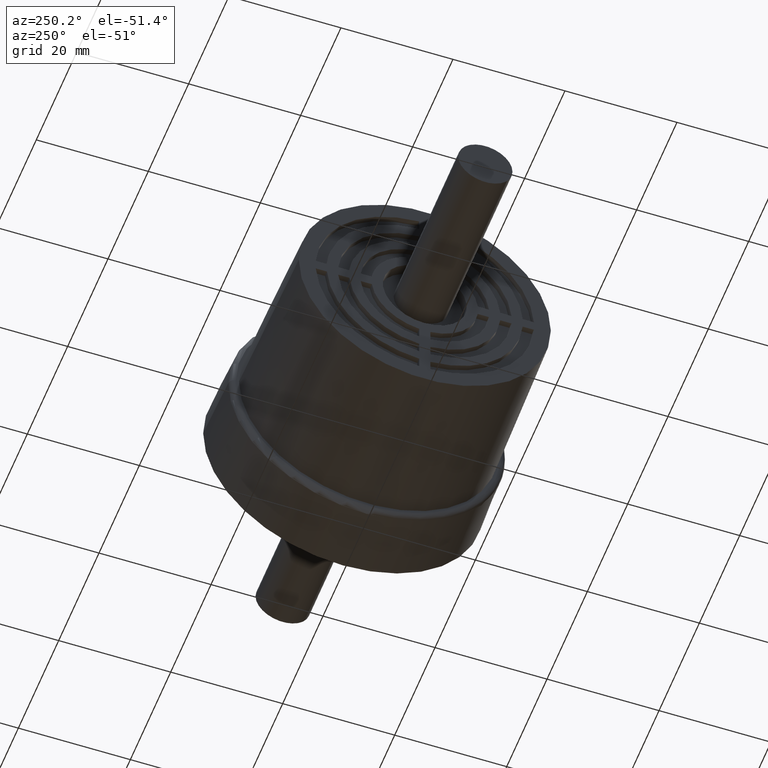
[diagram: clean part render]
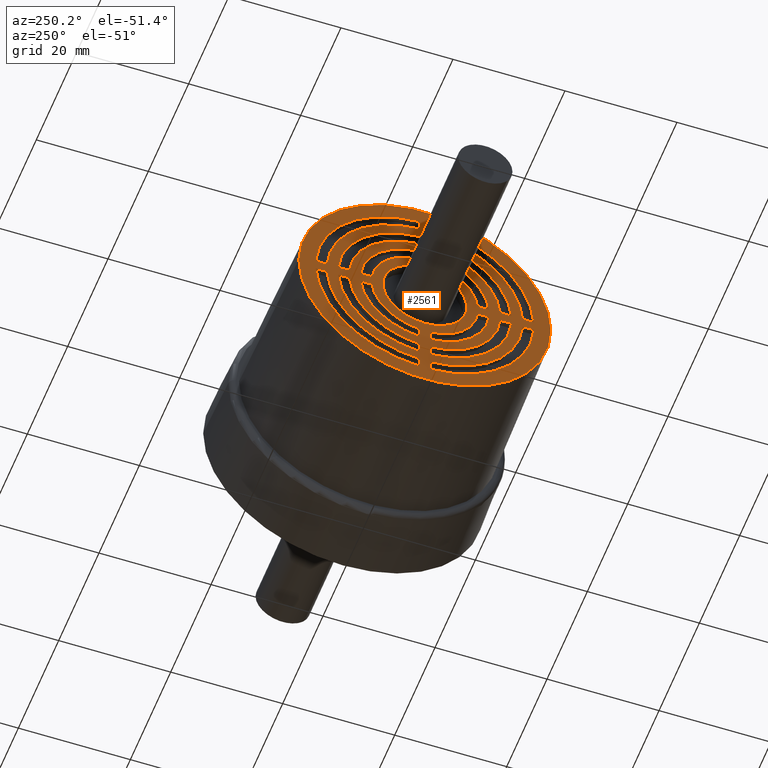
[diagram: same view with one face highlighted and labeled with its STEP entity id]
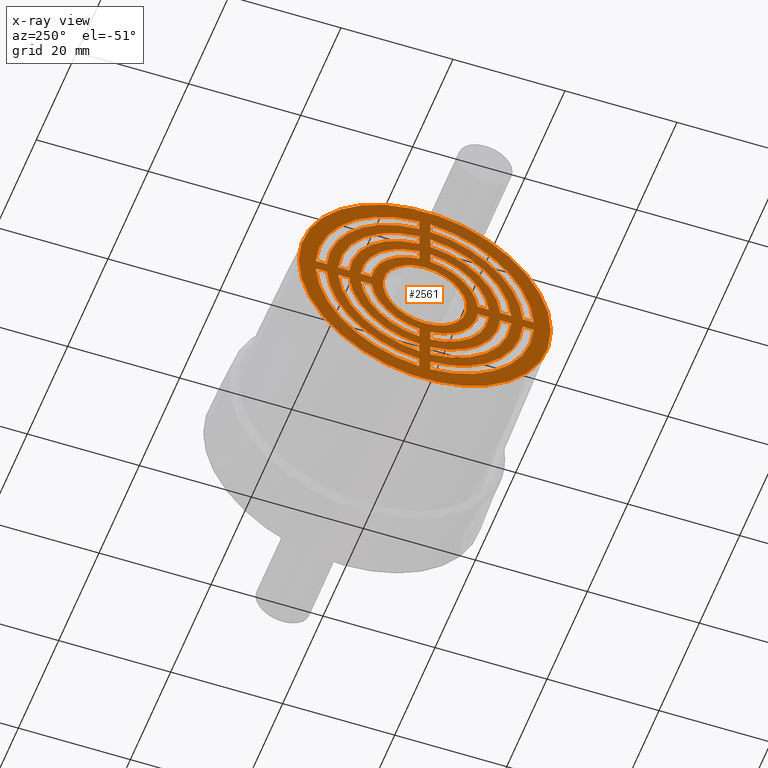
[diagram: x-ray of the same camera — body ghosted, the highlighted face saturated]
A machine part, auxiliary view. The second image highlights one B-rep face of the part: STEP entity #2561.
The next image is the same camera in x-ray: the body ghosted, the highlighted face saturated — about 10% of this face is hidden behind the body in this view.
In plain terms, the highlighted planar face has unit normal (-1, -0, 0).
Its self-contained STEP definition (entity closure, byte-faithful):
#143=LINE('',#4064,#367);
#148=LINE('',#4078,#372);
#151=LINE('',#4089,#375);
#156=LINE('',#4103,#380);
#159=LINE('',#4114,#383);
#164=LINE('',#4128,#388);
#167=LINE('',#4139,#391);
#172=LINE('',#4153,#396);
#175=LINE('',#4164,#399);
#180=LINE('',#4178,#404);
#183=LINE('',#4189,#407);
#188=LINE('',#4203,#412);
#193=LINE('',#4222,#417);
#197=LINE('',#4233,#421);
#199=LINE('',#4239,#423);
#204=LINE('',#4253,#428);
#207=LINE('',#4264,#431);
#212=LINE('',#4278,#436);
#215=LINE('',#4289,#439);
#220=LINE('',#4303,#444);
#223=LINE('',#4314,#447);
#228=LINE('',#4328,#452);
#231=LINE('',#4339,#455);
#236=LINE('',#4353,#460);
#367=VECTOR('',#3303,2.00241678883345);
#372=VECTOR('',#3316,2.00241678883345);
#375=VECTOR('',#3329,2.00241678883345);
#380=VECTOR('',#3342,2.00241678883345);
#383=VECTOR('',#3355,2.00479628042176);
#388=VECTOR('',#3368,2.00479628042176);
#391=VECTOR('',#3381,2.00479628042176);
#396=VECTOR('',#3394,2.00479628042176);
#399=VECTOR('',#3407,2.00921742354401);
#404=VECTOR('',#3420,2.00921742354401);
#407=VECTOR('',#3433,2.00921742354401);
#412=VECTOR('',#3446,2.00921742354401);
#417=VECTOR('',#3467,2.00921742354401);
#421=VECTOR('',#3479,2.00921742354401);
#423=VECTOR('',#3485,2.00921742354401);
#428=VECTOR('',#3498,2.00921742354401);
#431=VECTOR('',#3511,2.00479628042176);
#436=VECTOR('',#3524,2.00479628042176);
#439=VECTOR('',#3537,2.00479628042176);
#444=VECTOR('',#3550,2.00479628042176);
#447=VECTOR('',#3563,2.00241678883345);
#452=VECTOR('',#3576,2.00241678883345);
#455=VECTOR('',#3589,2.00241678883345);
#460=VECTOR('',#3602,2.00241678883345);
#612=PLANE('',#2839);
#623=FACE_BOUND('',#965,.T.);
#624=FACE_BOUND('',#966,.T.);
#625=FACE_BOUND('',#967,.T.);
#626=FACE_BOUND('',#968,.T.);
#627=FACE_BOUND('',#969,.T.);
#628=FACE_BOUND('',#970,.T.);
#629=FACE_BOUND('',#971,.T.);
#630=FACE_BOUND('',#972,.T.);
#631=FACE_BOUND('',#973,.T.);
#632=FACE_BOUND('',#974,.T.);
#633=FACE_BOUND('',#975,.T.);
#634=FACE_BOUND('',#976,.T.);
#635=FACE_BOUND('',#977,.T.);
#803=FACE_OUTER_BOUND('',#964,.T.);
#964=EDGE_LOOP('',(#2289));
#965=EDGE_LOOP('',(#2290));
#966=EDGE_LOOP('',(#2291,#2292,#2293,#2294));
#967=EDGE_LOOP('',(#2295,#2296,#2297,#2298));
#968=EDGE_LOOP('',(#2299,#2300,#2301,#2302));
#969=EDGE_LOOP('',(#2303,#2304,#2305,#2306));
#970=EDGE_LOOP('',(#2307,#2308,#2309,#2310));
#971=EDGE_LOOP('',(#2311,#2312,#2313,#2314));
#972=EDGE_LOOP('',(#2315,#2316,#2317,#2318));
#973=EDGE_LOOP('',(#2319,#2320,#2321,#2322));
#974=EDGE_LOOP('',(#2323,#2324,#2325,#2326));
#975=EDGE_LOOP('',(#2327,#2328,#2329,#2330));
#976=EDGE_LOOP('',(#2331,#2332,#2333,#2334));
#977=EDGE_LOOP('',(#2335,#2336,#2337,#2338));
#1076=CIRCLE('',#2728,7.5);
#1078=CIRCLE('',#2733,17.5);
#1080=CIRCLE('',#2737,19.4994805886941);
#1082=CIRCLE('',#2742,19.4994805886941);
#1084=CIRCLE('',#2746,17.5);
#1086=CIRCLE('',#2751,13.5);
#1088=CIRCLE('',#2755,15.5);
#1090=CIRCLE('',#2760,15.5);
#1092=CIRCLE('',#2764,13.5);
#1094=CIRCLE('',#2769,9.5);
#1096=CIRCLE('',#2773,11.5);
#1098=CIRCLE('',#2778,11.5);
#1100=CIRCLE('',#2782,9.5);
#1102=CIRCLE('',#2786,11.5);
#1104=CIRCLE('',#2790,9.5);
#1106=CIRCLE('',#2796,11.5);
#1108=CIRCLE('',#2800,9.5);
#1110=CIRCLE('',#2805,15.5);
#1112=CIRCLE('',#2809,13.5);
#1114=CIRCLE('',#2814,15.5);
#1116=CIRCLE('',#2818,13.5);
#1118=CIRCLE('',#2823,19.4994805886941);
#1120=CIRCLE('',#2827,17.5);
#1122=CIRCLE('',#2832,17.5);
#1124=CIRCLE('',#2836,19.4994805886941);
#1126=CIRCLE('',#2840,22.5);
#1265=VERTEX_POINT('',#4056);
#1267=VERTEX_POINT('',#4062);
#1268=VERTEX_POINT('',#4063);
#1271=VERTEX_POINT('',#4071);
#1273=VERTEX_POINT('',#4077);
#1275=VERTEX_POINT('',#4087);
#1276=VERTEX_POINT('',#4088);
#1279=VERTEX_POINT('',#4096);
#1281=VERTEX_POINT('',#4102);
#1283=VERTEX_POINT('',#4112);
#1284=VERTEX_POINT('',#4113);
#1287=VERTEX_POINT('',#4121);
#1289=VERTEX_POINT('',#4127);
#1291=VERTEX_POINT('',#4137);
#1292=VERTEX_POINT('',#4138);
#1295=VERTEX_POINT('',#4146);
#1297=VERTEX_POINT('',#4152);
#1299=VERTEX_POINT('',#4162);
#1300=VERTEX_POINT('',#4163);
#1303=VERTEX_POINT('',#4171);
#1305=VERTEX_POINT('',#4177);
#1307=VERTEX_POINT('',#4187);
#1308=VERTEX_POINT('',#4188);
#1311=VERTEX_POINT('',#4196);
#1313=VERTEX_POINT('',#4202);
#1315=VERTEX_POINT('',#4212);
#1316=VERTEX_POINT('',#4213);
#1319=VERTEX_POINT('',#4221);
#1321=VERTEX_POINT('',#4227);
#1323=VERTEX_POINT('',#4237);
#1324=VERTEX_POINT('',#4238);
#1327=VERTEX_POINT('',#4246);
#1329=VERTEX_POINT('',#4252);
#1331=VERTEX_POINT('',#4262);
#1332=VERTEX_POINT('',#4263);
#1335=VERTEX_POINT('',#4271);
#1337=VERTEX_POINT('',#4277);
#1339=VERTEX_POINT('',#4287);
#1340=VERTEX_POINT('',#4288);
#1343=VERTEX_POINT('',#4296);
#1345=VERTEX_POINT('',#4302);
#1347=VERTEX_POINT('',#4312);
#1348=VERTEX_POINT('',#4313);
#1351=VERTEX_POINT('',#4321);
#1353=VERTEX_POINT('',#4327);
#1355=VERTEX_POINT('',#4337);
#1356=VERTEX_POINT('',#4338);
#1359=VERTEX_POINT('',#4346);
#1361=VERTEX_POINT('',#4352);
#1363=VERTEX_POINT('',#4362);
#1566=EDGE_CURVE('',#1265,#1265,#1076,.T.);
#1568=EDGE_CURVE('',#1267,#1268,#143,.T.);
#1572=EDGE_CURVE('',#1271,#1267,#1078,.T.);
#1575=EDGE_CURVE('',#1273,#1271,#148,.T.);
#1578=EDGE_CURVE('',#1268,#1273,#1080,.T.);
#1580=EDGE_CURVE('',#1275,#1276,#151,.T.);
#1584=EDGE_CURVE('',#1279,#1275,#1082,.T.);
#1587=EDGE_CURVE('',#1281,#1279,#156,.T.);
#1590=EDGE_CURVE('',#1276,#1281,#1084,.T.);
#1592=EDGE_CURVE('',#1283,#1284,#159,.T.);
#1596=EDGE_CURVE('',#1287,#1283,#1086,.T.);
#1599=EDGE_CURVE('',#1289,#1287,#164,.T.);
#1602=EDGE_CURVE('',#1284,#1289,#1088,.T.);
#1604=EDGE_CURVE('',#1291,#1292,#167,.T.);
#1608=EDGE_CURVE('',#1295,#1291,#1090,.T.);
#1611=EDGE_CURVE('',#1297,#1295,#172,.T.);
#1614=EDGE_CURVE('',#1292,#1297,#1092,.T.);
#1616=EDGE_CURVE('',#1299,#1300,#175,.T.);
#1620=EDGE_CURVE('',#1303,#1299,#1094,.T.);
#1623=EDGE_CURVE('',#1305,#1303,#180,.T.);
#1626=EDGE_CURVE('',#1300,#1305,#1096,.T.);
#1628=EDGE_CURVE('',#1307,#1308,#183,.T.);
#1632=EDGE_CURVE('',#1311,#1307,#1098,.T.);
#1635=EDGE_CURVE('',#1313,#1311,#188,.T.);
#1638=EDGE_CURVE('',#1308,#1313,#1100,.T.);
#1640=EDGE_CURVE('',#1315,#1316,#1102,.T.);
#1644=EDGE_CURVE('',#1319,#1315,#193,.T.);
#1647=EDGE_CURVE('',#1321,#1319,#1104,.T.);
#1650=EDGE_CURVE('',#1316,#1321,#197,.T.);
#1652=EDGE_CURVE('',#1323,#1324,#199,.T.);
#1656=EDGE_CURVE('',#1327,#1323,#1106,.T.);
#1659=EDGE_CURVE('',#1329,#1327,#204,.T.);
#1662=EDGE_CURVE('',#1324,#1329,#1108,.T.);
#1664=EDGE_CURVE('',#1331,#1332,#207,.T.);
#1668=EDGE_CURVE('',#1335,#1331,#1110,.T.);
#1671=EDGE_CURVE('',#1337,#1335,#212,.T.);
#1674=EDGE_CURVE('',#1332,#1337,#1112,.T.);
#1676=EDGE_CURVE('',#1339,#1340,#215,.T.);
#1680=EDGE_CURVE('',#1343,#1339,#1114,.T.);
#1683=EDGE_CURVE('',#1345,#1343,#220,.T.);
#1686=EDGE_CURVE('',#1340,#1345,#1116,.T.);
#1688=EDGE_CURVE('',#1347,#1348,#223,.T.);
#1692=EDGE_CURVE('',#1351,#1347,#1118,.T.);
#1695=EDGE_CURVE('',#1353,#1351,#228,.T.);
#1698=EDGE_CURVE('',#1348,#1353,#1120,.T.);
#1700=EDGE_CURVE('',#1355,#1356,#231,.T.);
#1704=EDGE_CURVE('',#1359,#1355,#1122,.T.);
#1707=EDGE_CURVE('',#1361,#1359,#236,.T.);
#1710=EDGE_CURVE('',#1356,#1361,#1124,.T.);
#1712=EDGE_CURVE('',#1363,#1363,#1126,.T.);
#2289=ORIENTED_EDGE('',*,*,#1712,.F.);
#2290=ORIENTED_EDGE('',*,*,#1566,.T.);
#2291=ORIENTED_EDGE('',*,*,#1568,.T.);
#2292=ORIENTED_EDGE('',*,*,#1578,.T.);
#2293=ORIENTED_EDGE('',*,*,#1575,.T.);
#2294=ORIENTED_EDGE('',*,*,#1572,.T.);
#2295=ORIENTED_EDGE('',*,*,#1580,.T.);
#2296=ORIENTED_EDGE('',*,*,#1590,.T.);
#2297=ORIENTED_EDGE('',*,*,#1587,.T.);
#2298=ORIENTED_EDGE('',*,*,#1584,.T.);
#2299=ORIENTED_EDGE('',*,*,#1592,.T.);
#2300=ORIENTED_EDGE('',*,*,#1602,.T.);
#2301=ORIENTED_EDGE('',*,*,#1599,.T.);
#2302=ORIENTED_EDGE('',*,*,#1596,.T.);
#2303=ORIENTED_EDGE('',*,*,#1604,.T.);
#2304=ORIENTED_EDGE('',*,*,#1614,.T.);
#2305=ORIENTED_EDGE('',*,*,#1611,.T.);
#2306=ORIENTED_EDGE('',*,*,#1608,.T.);
#2307=ORIENTED_EDGE('',*,*,#1616,.T.);
#2308=ORIENTED_EDGE('',*,*,#1626,.T.);
#2309=ORIENTED_EDGE('',*,*,#1623,.T.);
#2310=ORIENTED_EDGE('',*,*,#1620,.T.);
#2311=ORIENTED_EDGE('',*,*,#1628,.T.);
#2312=ORIENTED_EDGE('',*,*,#1638,.T.);
#2313=ORIENTED_EDGE('',*,*,#1635,.T.);
#2314=ORIENTED_EDGE('',*,*,#1632,.T.);
#2315=ORIENTED_EDGE('',*,*,#1640,.T.);
#2316=ORIENTED_EDGE('',*,*,#1650,.T.);
#2317=ORIENTED_EDGE('',*,*,#1647,.T.);
#2318=ORIENTED_EDGE('',*,*,#1644,.T.);
#2319=ORIENTED_EDGE('',*,*,#1652,.T.);
#2320=ORIENTED_EDGE('',*,*,#1662,.T.);
#2321=ORIENTED_EDGE('',*,*,#1659,.T.);
#2322=ORIENTED_EDGE('',*,*,#1656,.T.);
#2323=ORIENTED_EDGE('',*,*,#1664,.T.);
#2324=ORIENTED_EDGE('',*,*,#1674,.T.);
#2325=ORIENTED_EDGE('',*,*,#1671,.T.);
#2326=ORIENTED_EDGE('',*,*,#1668,.T.);
#2327=ORIENTED_EDGE('',*,*,#1676,.T.);
#2328=ORIENTED_EDGE('',*,*,#1686,.T.);
#2329=ORIENTED_EDGE('',*,*,#1683,.T.);
#2330=ORIENTED_EDGE('',*,*,#1680,.T.);
#2331=ORIENTED_EDGE('',*,*,#1688,.T.);
#2332=ORIENTED_EDGE('',*,*,#1698,.T.);
#2333=ORIENTED_EDGE('',*,*,#1695,.T.);
#2334=ORIENTED_EDGE('',*,*,#1692,.T.);
#2335=ORIENTED_EDGE('',*,*,#1700,.T.);
#2336=ORIENTED_EDGE('',*,*,#1710,.T.);
#2337=ORIENTED_EDGE('',*,*,#1707,.T.);
#2338=ORIENTED_EDGE('',*,*,#1704,.T.);
#2561=ADVANCED_FACE('',(#803,#623,#624,#625,#626,#627,#628,#629,#630,#631,
#632,#633,#634,#635),#612,.T.);
#2728=AXIS2_PLACEMENT_3D('',#4057,#3295,#3296);
#2733=AXIS2_PLACEMENT_3D('',#4072,#3309,#3310);
#2737=AXIS2_PLACEMENT_3D('',#4083,#3321,#3322);
#2742=AXIS2_PLACEMENT_3D('',#4097,#3335,#3336);
#2746=AXIS2_PLACEMENT_3D('',#4108,#3347,#3348);
#2751=AXIS2_PLACEMENT_3D('',#4122,#3361,#3362);
#2755=AXIS2_PLACEMENT_3D('',#4133,#3373,#3374);
#2760=AXIS2_PLACEMENT_3D('',#4147,#3387,#3388);
#2764=AXIS2_PLACEMENT_3D('',#4158,#3399,#3400);
#2769=AXIS2_PLACEMENT_3D('',#4172,#3413,#3414);
#2773=AXIS2_PLACEMENT_3D('',#4183,#3425,#3426);
#2778=AXIS2_PLACEMENT_3D('',#4197,#3439,#3440);
#2782=AXIS2_PLACEMENT_3D('',#4208,#3451,#3452);
#2786=AXIS2_PLACEMENT_3D('',#4214,#3459,#3460);
#2790=AXIS2_PLACEMENT_3D('',#4228,#3472,#3473);
#2796=AXIS2_PLACEMENT_3D('',#4247,#3491,#3492);
#2800=AXIS2_PLACEMENT_3D('',#4258,#3503,#3504);
#2805=AXIS2_PLACEMENT_3D('',#4272,#3517,#3518);
#2809=AXIS2_PLACEMENT_3D('',#4283,#3529,#3530);
#2814=AXIS2_PLACEMENT_3D('',#4297,#3543,#3544);
#2818=AXIS2_PLACEMENT_3D('',#4308,#3555,#3556);
#2823=AXIS2_PLACEMENT_3D('',#4322,#3569,#3570);
#2827=AXIS2_PLACEMENT_3D('',#4333,#3581,#3582);
#2832=AXIS2_PLACEMENT_3D('',#4347,#3595,#3596);
#2836=AXIS2_PLACEMENT_3D('',#4358,#3607,#3608);
#2839=AXIS2_PLACEMENT_3D('',#4361,#3613,#3614);
#2840=AXIS2_PLACEMENT_3D('',#4363,#3615,#3616);
#3295=DIRECTION('center_axis',(1.,1.83697019872103E-16,0.));
#3296=DIRECTION('ref_axis',(0.,0.,-1.));
#3303=DIRECTION('',(-2.11722716332591E-32,1.15256478564541E-16,-1.));
#3309=DIRECTION('center_axis',(-1.,-1.83697019872103E-16,0.));
#3310=DIRECTION('ref_axis',(0.,-0.998366011980351,0.0571428571428572));
#3316=DIRECTION('',(1.83697019872103E-16,-1.,-6.91538871387244E-17));
#3321=DIRECTION('center_axis',(1.,1.83697019872103E-16,0.));
#3322=DIRECTION('ref_axis',(0.,0.998684139811428,-0.051283417291628));
#3329=DIRECTION('',(-1.83697019872103E-16,1.,1.84410365703265E-16));
#3335=DIRECTION('center_axis',(1.,1.83697019872103E-16,0.));
#3336=DIRECTION('ref_axis',(1.38595265793328E-16,-0.998684139811428,0.0512834172916279));
#3342=DIRECTION('',(0.,0.,1.));
#3347=DIRECTION('center_axis',(-1.,-1.83697019872103E-16,0.));
#3348=DIRECTION('ref_axis',(-1.38551116687973E-16,0.998366011980351,-0.0571428571428565));
#3355=DIRECTION('',(-2.11722716332591E-32,1.15256478564541E-16,-1.));
#3361=DIRECTION('center_axis',(-1.,-1.83697019872103E-16,0.));
#3362=DIRECTION('ref_axis',(0.,-0.997252742061945,0.0740740740740739));
#3368=DIRECTION('',(1.83697019872103E-16,-1.,-6.91538871387244E-17));
#3373=DIRECTION('center_axis',(1.,1.83697019872103E-16,0.));
#3374=DIRECTION('ref_axis',(0.,0.997916664403743,-0.0645161290322579));
#3381=DIRECTION('',(-1.83697019872103E-16,1.,1.84410365703265E-16));
#3387=DIRECTION('center_axis',(1.,1.83697019872103E-16,0.));
#3388=DIRECTION('ref_axis',(1.38488757184772E-16,-0.997916664403743,0.0645161290322571));
#3394=DIRECTION('',(0.,0.,1.));
#3399=DIRECTION('center_axis',(-1.,-1.83697019872103E-16,0.));
#3400=DIRECTION('ref_axis',(-1.38396619450969E-16,0.997252742061945,-0.0740740740740738));
#3407=DIRECTION('',(-2.11722716332591E-32,1.15256478564541E-16,-1.));
#3413=DIRECTION('center_axis',(-1.,-1.83697019872103E-16,0.));
#3414=DIRECTION('ref_axis',(0.,-0.994444401457431,0.105263157894737));
#3420=DIRECTION('',(1.83697019872103E-16,-1.,-6.91538871387244E-17));
#3425=DIRECTION('center_axis',(1.,1.83697019872103E-16,0.));
#3426=DIRECTION('ref_axis',(0.,0.996212107599096,-0.0869565217391303));
#3433=DIRECTION('',(-1.83697019872103E-16,1.,1.84410365703265E-16));
#3439=DIRECTION('center_axis',(1.,1.83697019872103E-16,0.));
#3440=DIRECTION('ref_axis',(1.38252202408359E-16,-0.996212107599096,0.0869565217391304));
#3446=DIRECTION('',(0.,0.,1.));
#3451=DIRECTION('center_axis',(-1.,-1.83697019872103E-16,0.));
#3452=DIRECTION('ref_axis',(-1.38006883900953E-16,0.994444401457431,-0.105263157894736));
#3459=DIRECTION('center_axis',(1.,1.83697019872103E-16,0.));
#3460=DIRECTION('ref_axis',(-1.20676415720126E-17,0.0869565217391304,0.996212107599096));
#3467=DIRECTION('',(-1.83697019872103E-16,1.,6.91538871387244E-17));
#3472=DIRECTION('center_axis',(-1.,-1.83697019872103E-16,0.));
#3473=DIRECTION('ref_axis',(1.46081976924363E-17,-0.105263157894737,-0.994444401457431));
#3479=DIRECTION('',(2.11722716332591E-33,-1.15256478564541E-17,-1.));
#3485=DIRECTION('',(2.11722716332591E-32,-1.15256478564541E-16,1.));
#3491=DIRECTION('center_axis',(1.,1.83697019872103E-16,0.));
#3492=DIRECTION('ref_axis',(0.,-0.08695652173913,-0.996212107599096));
#3498=DIRECTION('',(1.83697019872103E-16,-1.,-1.84410365703265E-16));
#3503=DIRECTION('center_axis',(-1.,-1.83697019872103E-16,0.));
#3504=DIRECTION('ref_axis',(0.,0.105263157894736,0.994444401457431));
#3511=DIRECTION('',(2.11722716332591E-33,-1.15256478564541E-17,-1.));
#3517=DIRECTION('center_axis',(1.,1.83697019872103E-16,0.));
#3518=DIRECTION('ref_axis',(0.,0.0645161290322581,0.997916664403743));
#3524=DIRECTION('',(-1.83697019872103E-16,1.,6.91538871387244E-17));
#3529=DIRECTION('center_axis',(-1.,-1.83697019872103E-16,0.));
#3530=DIRECTION('ref_axis',(0.,-0.0740740740740741,-0.997252742061945));
#3537=DIRECTION('',(2.11722716332591E-32,-1.15256478564541E-16,1.));
#3543=DIRECTION('center_axis',(1.,1.83697019872103E-16,0.));
#3544=DIRECTION('ref_axis',(0.,-0.0645161290322576,-0.997916664403743));
#3550=DIRECTION('',(1.83697019872103E-16,-1.,-1.84410365703265E-16));
#3555=DIRECTION('center_axis',(-1.,-1.83697019872103E-16,0.));
#3556=DIRECTION('ref_axis',(0.,0.0740740740740738,0.997252742061945));
#3563=DIRECTION('',(2.11722716332591E-33,-1.15256478564541E-17,-1.));
#3569=DIRECTION('center_axis',(1.,1.83697019872103E-16,0.));
#3570=DIRECTION('ref_axis',(0.,0.0512834172916281,0.998684139811428));
#3576=DIRECTION('',(-1.83697019872103E-16,1.,6.91538871387244E-17));
#3581=DIRECTION('center_axis',(-1.,-1.83697019872103E-16,0.));
#3582=DIRECTION('ref_axis',(0.,-0.0571428571428572,-0.998366011980351));
#3589=DIRECTION('',(1.83697019872103E-16,-1.,-1.84410365703265E-16));
#3595=DIRECTION('center_axis',(-1.,-1.83697019872103E-16,0.));
#3596=DIRECTION('ref_axis',(-7.93016446160826E-18,0.057142857142857,0.998366011980351));
#3602=DIRECTION('',(2.11722716332591E-32,-1.15256478564541E-16,1.));
#3607=DIRECTION('center_axis',(1.,1.83697019872103E-16,0.));
#3608=DIRECTION('ref_axis',(7.11700383232818E-18,-0.0512834172916279,-0.998684139811428));
#3613=DIRECTION('center_axis',(-1.,-1.83697019872103E-16,0.));
#3614=DIRECTION('ref_axis',(0.,0.,1.));
#3615=DIRECTION('center_axis',(1.,1.83697019872103E-16,0.));
#3616=DIRECTION('ref_axis',(0.,0.,-1.));
#4056=CARTESIAN_POINT('',(-70.5,-1.20321548016227E-14,7.5));
#4057=CARTESIAN_POINT('Origin',(-70.5,-1.29506399009833E-14,0.));
#4062=CARTESIAN_POINT('',(-70.5,0.999999999999988,-17.4714052096561));
#4063=CARTESIAN_POINT('',(-70.5,0.99999999999999,-19.4738219984896));
#4064=CARTESIAN_POINT('',(-70.5,0.999999999999988,-8.73570260482808));
#4071=CARTESIAN_POINT('',(-70.5,17.4714052096561,-1.));
#4072=CARTESIAN_POINT('Origin',(-70.5,-1.29506399009833E-14,0.));
#4077=CARTESIAN_POINT('',(-70.5,19.4738219984896,-0.999999999999999));
#4078=CARTESIAN_POINT('',(-70.5,20.9869109992448,-0.999999999999999));
#4083=CARTESIAN_POINT('Origin',(-70.5,-1.29506399009833E-14,0.));
#4087=CARTESIAN_POINT('',(-70.5,-19.4738219984896,0.999999999999996));
#4088=CARTESIAN_POINT('',(-70.5,-17.4714052096562,0.999999999999988));
#4089=CARTESIAN_POINT('',(-70.5,1.51308900075519,1.));
#4096=CARTESIAN_POINT('',(-70.5,-1.00000000000001,19.4738219984896));
#4097=CARTESIAN_POINT('Origin',(-70.5,-1.29506399009833E-14,0.));
#4102=CARTESIAN_POINT('',(-70.5,-1.00000000000002,17.4714052096561));
#4103=CARTESIAN_POINT('',(-70.5,-1.00000000000001,8.73570260482807));
#4108=CARTESIAN_POINT('Origin',(-70.5,-1.29506399009833E-14,0.));
#4112=CARTESIAN_POINT('',(-70.5,0.999999999999988,-13.4629120178363));
#4113=CARTESIAN_POINT('',(-70.5,0.999999999999991,-15.467708298258));
#4114=CARTESIAN_POINT('',(-70.5,0.999999999999988,-6.73145600891813));
#4121=CARTESIAN_POINT('',(-70.5,13.4629120178362,-0.999999999999998));
#4122=CARTESIAN_POINT('Origin',(-70.5,-1.29506399009833E-14,0.));
#4127=CARTESIAN_POINT('',(-70.5,15.467708298258,-0.999999999999998));
#4128=CARTESIAN_POINT('',(-70.5,18.983854149129,-0.999999999999999));
#4133=CARTESIAN_POINT('Origin',(-70.5,-1.29506399009833E-14,0.));
#4137=CARTESIAN_POINT('',(-70.5,-15.467708298258,0.999999999999985));
#4138=CARTESIAN_POINT('',(-70.5,-13.4629120178363,0.999999999999996));
#4139=CARTESIAN_POINT('',(-70.5,3.51614585087098,1.));
#4146=CARTESIAN_POINT('',(-70.5,-1.00000000000001,15.467708298258));
#4147=CARTESIAN_POINT('Origin',(-70.5,-1.29506399009833E-14,0.));
#4152=CARTESIAN_POINT('',(-70.5,-1.00000000000001,13.4629120178363));
#4153=CARTESIAN_POINT('',(-70.5,-1.00000000000001,6.73145600891813));
#4158=CARTESIAN_POINT('Origin',(-70.5,-1.29506399009833E-14,0.));
#4162=CARTESIAN_POINT('',(-70.5,0.999999999999989,-9.44722181384559));
#4163=CARTESIAN_POINT('',(-70.5,0.99999999999999,-11.4564392373896));
#4164=CARTESIAN_POINT('',(-70.5,0.999999999999988,-4.7236109069228));
#4171=CARTESIAN_POINT('',(-70.5,9.44722181384558,-0.999999999999998));
#4172=CARTESIAN_POINT('Origin',(-70.5,-1.29506399009833E-14,0.));
#4177=CARTESIAN_POINT('',(-70.5,11.4564392373896,-0.999999999999999));
#4178=CARTESIAN_POINT('',(-70.5,16.9782196186948,-0.999999999999999));
#4183=CARTESIAN_POINT('Origin',(-70.5,-1.29506399009833E-14,0.));
#4187=CARTESIAN_POINT('',(-70.5,-11.4564392373896,1.));
#4188=CARTESIAN_POINT('',(-70.5,-9.44722181384561,0.999999999999995));
#4189=CARTESIAN_POINT('',(-70.5,5.52178038130519,1.));
#4196=CARTESIAN_POINT('',(-70.5,-1.00000000000001,11.4564392373896));
#4197=CARTESIAN_POINT('Origin',(-70.5,-1.29506399009833E-14,0.));
#4202=CARTESIAN_POINT('',(-70.5,-1.00000000000001,9.44722181384559));
#4203=CARTESIAN_POINT('',(-70.5,-1.00000000000001,4.7236109069228));
#4208=CARTESIAN_POINT('Origin',(-70.5,-1.29506399009833E-14,0.));
#4212=CARTESIAN_POINT('',(-70.5,11.4564392373896,1.));
#4213=CARTESIAN_POINT('',(-70.5,0.999999999999987,11.4564392373896));
#4214=CARTESIAN_POINT('Origin',(-70.5,-1.29506399009833E-14,0.));
#4221=CARTESIAN_POINT('',(-70.5,9.44722181384558,1.));
#4222=CARTESIAN_POINT('',(-70.5,15.9736109069228,1.));
#4227=CARTESIAN_POINT('',(-70.5,0.999999999999987,9.44722181384559));
#4228=CARTESIAN_POINT('Origin',(-70.5,-1.29506399009833E-14,0.));
#4233=CARTESIAN_POINT('',(-70.5,0.999999999999988,5.7282196186948));
#4237=CARTESIAN_POINT('',(-70.5,-1.00000000000001,-11.4564392373896));
#4238=CARTESIAN_POINT('',(-70.5,-1.00000000000001,-9.44722181384559));
#4239=CARTESIAN_POINT('',(-70.5,-1.00000000000001,-5.7282196186948));
#4246=CARTESIAN_POINT('',(-70.5,-11.4564392373896,-1.));
#4247=CARTESIAN_POINT('Origin',(-70.5,-1.29506399009833E-14,0.));
#4252=CARTESIAN_POINT('',(-70.5,-9.44722181384561,-1.00000000000001));
#4253=CARTESIAN_POINT('',(-70.5,6.52638909307719,-0.999999999999999));
#4258=CARTESIAN_POINT('Origin',(-70.5,-1.29506399009833E-14,0.));
#4262=CARTESIAN_POINT('',(-70.5,0.999999999999987,15.467708298258));
#4263=CARTESIAN_POINT('',(-70.5,0.999999999999987,13.4629120178363));
#4264=CARTESIAN_POINT('',(-70.5,0.999999999999988,7.73385414912901));
#4271=CARTESIAN_POINT('',(-70.5,15.467708298258,1.));
#4272=CARTESIAN_POINT('Origin',(-70.5,-1.29506399009833E-14,0.));
#4277=CARTESIAN_POINT('',(-70.5,13.4629120178362,1.));
#4278=CARTESIAN_POINT('',(-70.5,17.9814560089181,1.));
#4283=CARTESIAN_POINT('Origin',(-70.5,-1.29506399009833E-14,0.));
#4287=CARTESIAN_POINT('',(-70.5,-1.00000000000001,-15.467708298258));
#4288=CARTESIAN_POINT('',(-70.5,-1.00000000000001,-13.4629120178363));
#4289=CARTESIAN_POINT('',(-70.5,-1.00000000000001,-7.73385414912901));
#4296=CARTESIAN_POINT('',(-70.5,-15.467708298258,-1.));
#4297=CARTESIAN_POINT('Origin',(-70.5,-1.29506399009833E-14,0.));
#4302=CARTESIAN_POINT('',(-70.5,-13.4629120178363,-1.));
#4303=CARTESIAN_POINT('',(-70.5,4.51854399108186,-0.999999999999999));
#4308=CARTESIAN_POINT('Origin',(-70.5,-1.29506399009833E-14,0.));
#4312=CARTESIAN_POINT('',(-70.5,0.999999999999987,19.4738219984896));
#4313=CARTESIAN_POINT('',(-70.5,0.999999999999987,17.4714052096561));
#4314=CARTESIAN_POINT('',(-70.5,0.999999999999988,9.7369109992448));
#4321=CARTESIAN_POINT('',(-70.5,19.4738219984896,1.));
#4322=CARTESIAN_POINT('Origin',(-70.5,-1.29506399009833E-14,0.));
#4327=CARTESIAN_POINT('',(-70.5,17.4714052096561,1.));
#4328=CARTESIAN_POINT('',(-70.5,19.9857026048281,1.));
#4333=CARTESIAN_POINT('Origin',(-70.5,-1.29506399009833E-14,0.));
#4337=CARTESIAN_POINT('',(-70.5,-17.4714052096562,-1.00000000000001));
#4338=CARTESIAN_POINT('',(-70.5,-19.4738219984896,-1.));
#4339=CARTESIAN_POINT('',(-70.5,2.51429739517191,-1.));
#4346=CARTESIAN_POINT('',(-70.5,-1.00000000000001,-17.4714052096561));
#4347=CARTESIAN_POINT('Origin',(-70.5,-1.29506399009833E-14,0.));
#4352=CARTESIAN_POINT('',(-70.5,-1.00000000000001,-19.4738219984896));
#4353=CARTESIAN_POINT('',(-70.5,-1.00000000000001,-9.7369109992448));
#4358=CARTESIAN_POINT('Origin',(-70.5,-1.29506399009833E-14,0.));
#4361=CARTESIAN_POINT('Origin',(-70.5,22.5,0.));
#4362=CARTESIAN_POINT('',(-70.5,22.5,0.));
#4363=CARTESIAN_POINT('Origin',(-70.5,-1.29506399009833E-14,0.));